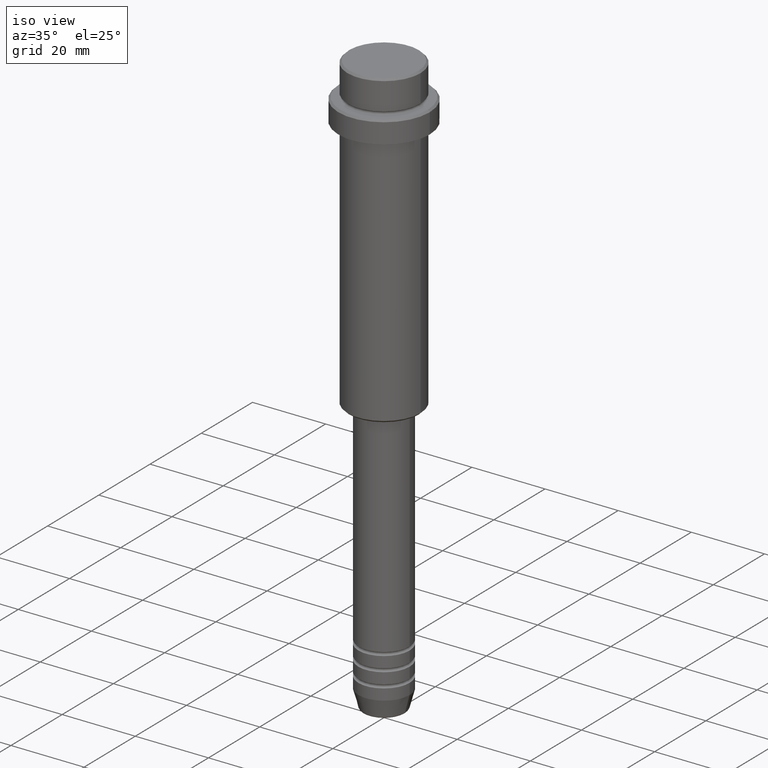
[diagram: clean part render]
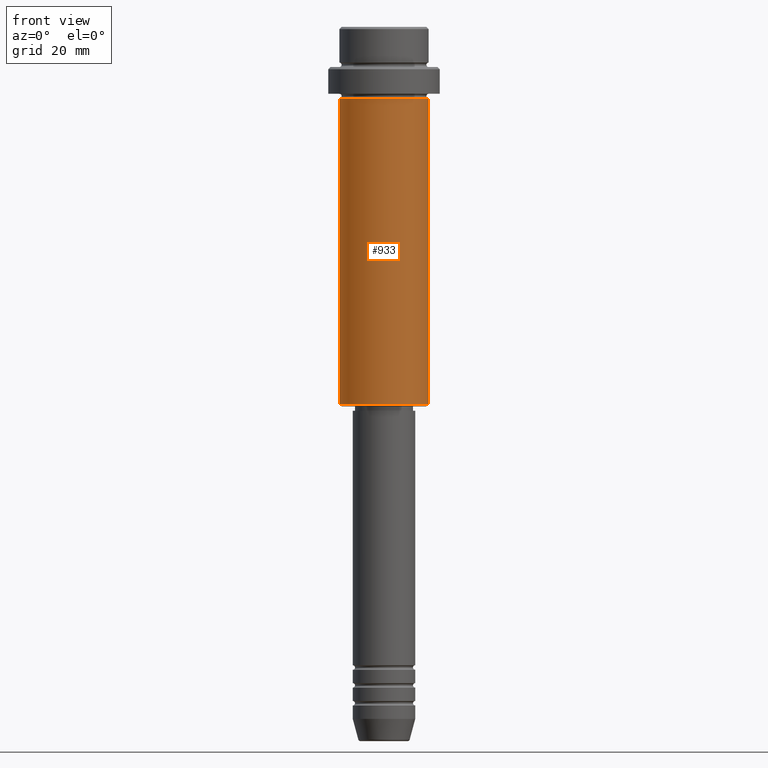
[diagram: tour spotlight — one face highlighted and labeled with its STEP entity id]
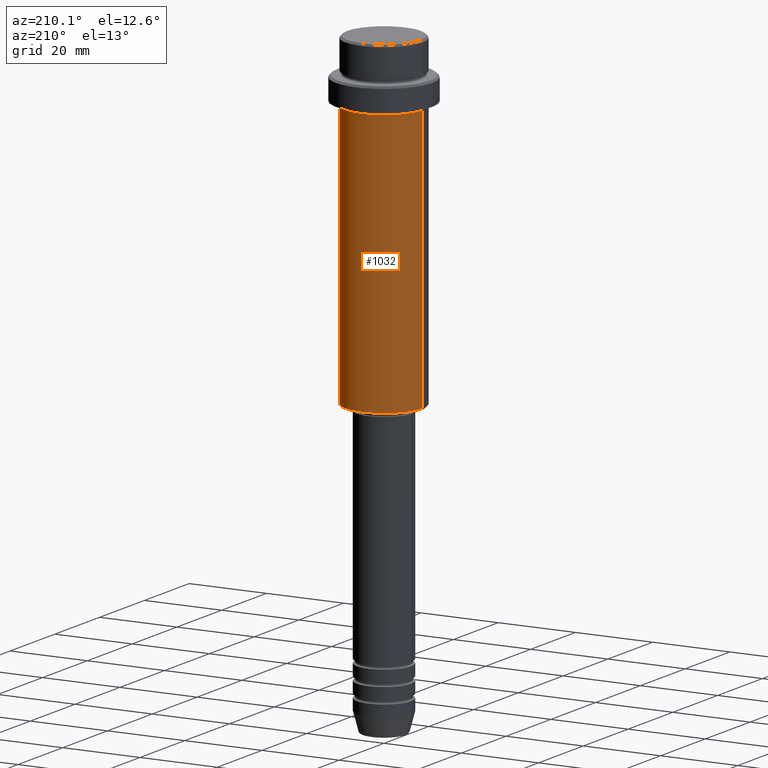
[diagram: tour spotlight — one face highlighted and labeled with its STEP entity id]
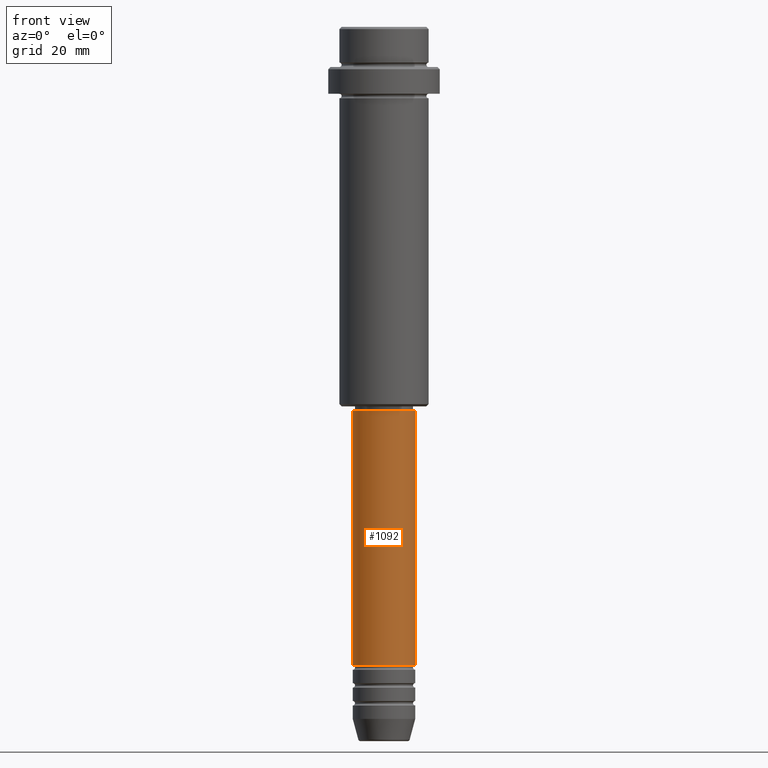
[diagram: tour spotlight — one face highlighted and labeled with its STEP entity id]
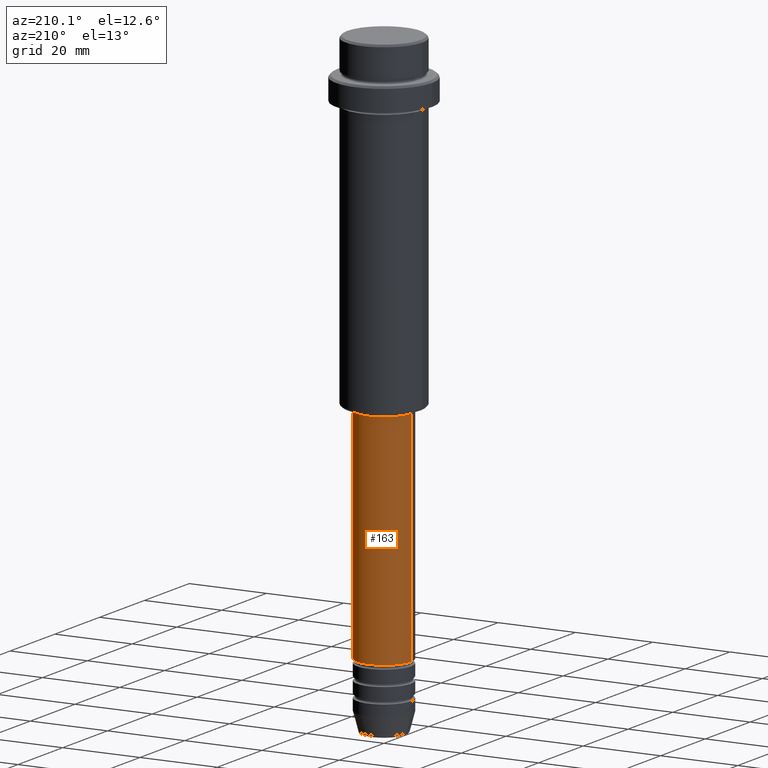
[diagram: tour spotlight — one face highlighted and labeled with its STEP entity id]
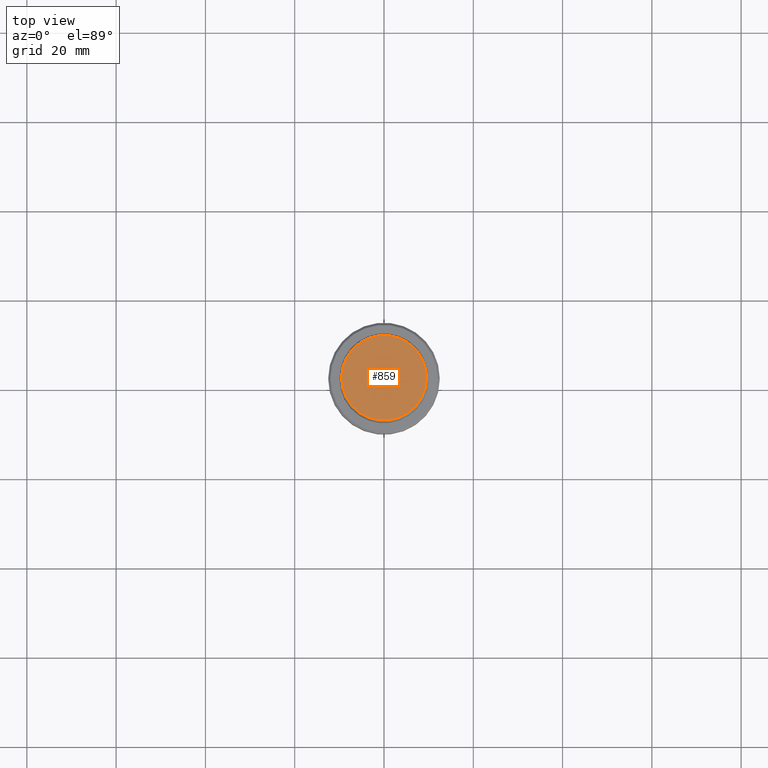
[diagram: tour spotlight — one face highlighted and labeled with its STEP entity id]
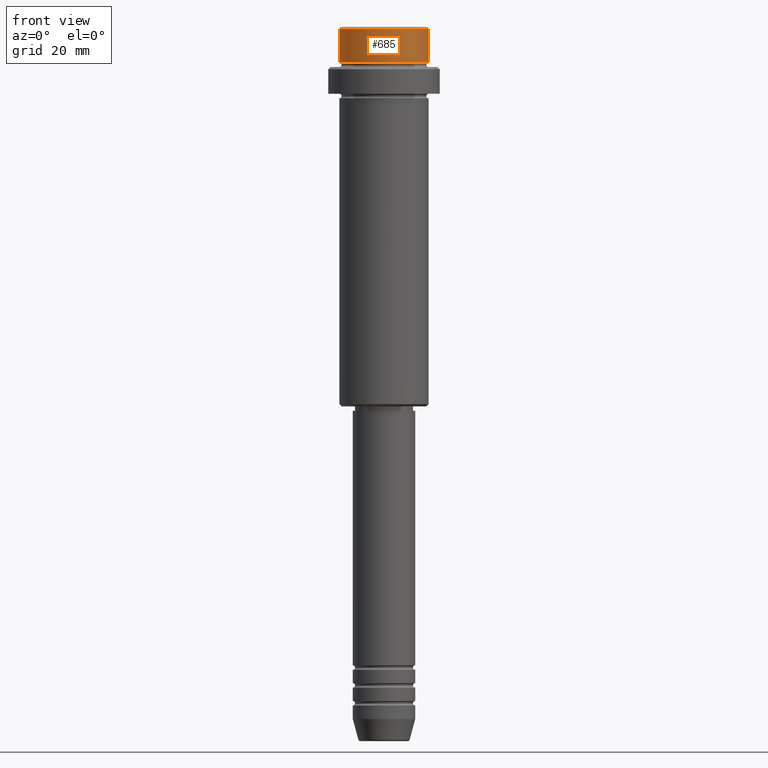
[diagram: tour spotlight — one face highlighted and labeled with its STEP entity id]
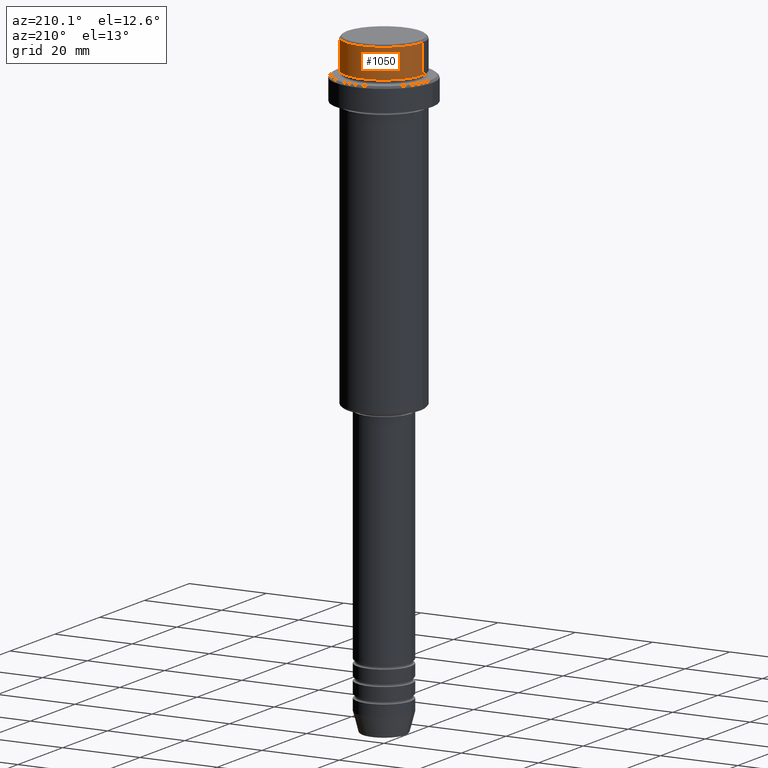
[diagram: tour spotlight — one face highlighted and labeled with its STEP entity id]
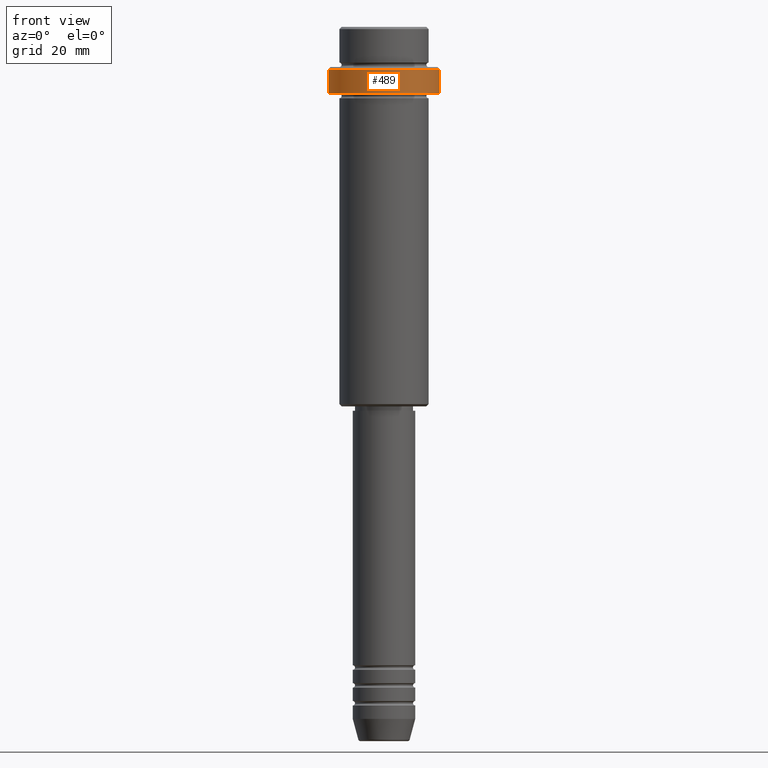
[diagram: tour spotlight — one face highlighted and labeled with its STEP entity id]
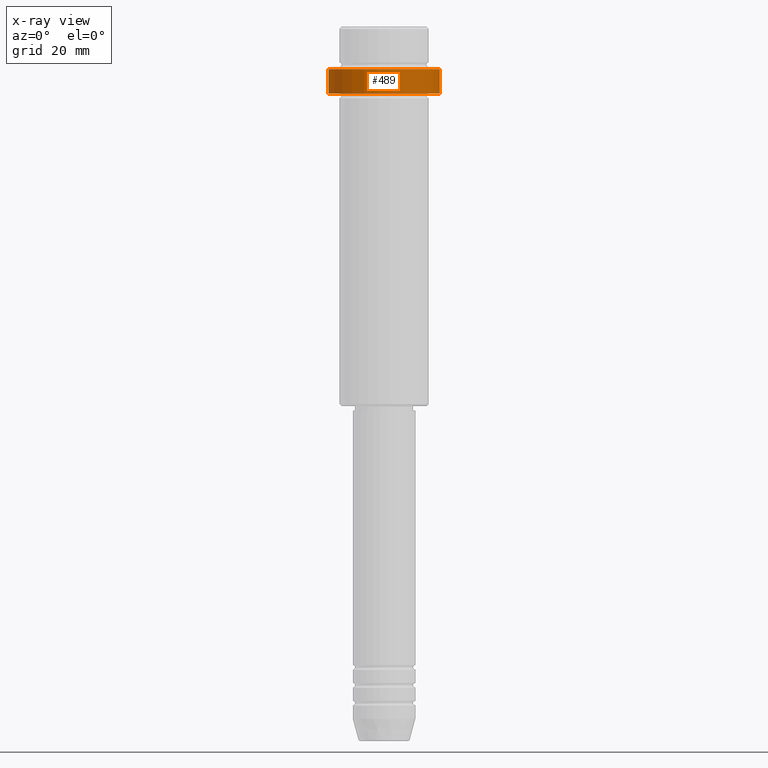
[diagram: x-ray of the same camera — body ghosted, this tour face saturated]
A machine part: a face-by-face anatomy tour. The part has 52 B-rep faces; the first image is the clean iso view, then the 8 largest visible faces are spotlighted one at a time (largest first), each with its STEP entity span.

Face 1 — front view, entity #933. In plain terms, the highlighted cylindrical surface (partial cylindrical patch) has radius 10 mm, axis along (-0, -0, 1).
Definition (entity closure, byte-faithful):
#7 = CARTESIAN_POINT ( 'NONE',  ( -10.00000000000000000, 1.224646799147353256E-15, -84.49999999999995737 ) ) ;
#12 = DIRECTION ( 'NONE',  ( -0.000000000000000000, -0.000000000000000000, 1.000000000000000000 ) ) ;
#26 = DIRECTION ( 'NONE',  ( 1.000000000000000000, 0.000000000000000000, 0.000000000000000000 ) ) ;
#54 = AXIS2_PLACEMENT_3D ( 'NONE', #377, #160, #1027 ) ;
#91 = CARTESIAN_POINT ( 'NONE',  ( 10.00000000000000000, 0.000000000000000000, 0.000000000000000000 ) ) ;
#100 = EDGE_CURVE ( 'NONE', #839, #482, #997, .T. ) ;
#145 = DIRECTION ( 'NONE',  ( -0.000000000000000000, -0.000000000000000000, 1.000000000000000000 ) ) ;
#160 = DIRECTION ( 'NONE',  ( -0.000000000000000000, -0.000000000000000000, 1.000000000000000000 ) ) ;
#207 = ORIENTED_EDGE ( 'NONE', *, *, #957, .F. ) ;
#271 = VERTEX_POINT ( 'NONE', #7 ) ;
#272 = FACE_OUTER_BOUND ( 'NONE', #652, .T. ) ;
#310 = CARTESIAN_POINT ( 'NONE',  ( -10.00000000000000000, 1.224646799147353256E-15, -16.00000000000000000 ) ) ;
#356 = CARTESIAN_POINT ( 'NONE',  ( -10.00000000000000000, 1.224646799147353256E-15, 0.000000000000000000 ) ) ;
#376 = LINE ( 'NONE', #356, #525 ) ;
#377 = CARTESIAN_POINT ( 'NONE',  ( 0.000000000000000000, 0.000000000000000000, -16.00000000000000000 ) ) ;
#392 = AXIS2_PLACEMENT_3D ( 'NONE', #910, #145, #26 ) ;
#453 = ORIENTED_EDGE ( 'NONE', *, *, #640, .T. ) ;
#482 = VERTEX_POINT ( 'NONE', #758 ) ;
#525 = VECTOR ( 'NONE', #1112, 1000.000000000000000 ) ;
#640 = EDGE_CURVE ( 'NONE', #1371, #482, #1097, .T. ) ;
#652 = EDGE_LOOP ( 'NONE', ( #207, #802, #453, #1107 ) ) ;
#750 = DIRECTION ( 'NONE',  ( -1.000000000000000000, 0.000000000000000000, 0.000000000000000000 ) ) ;
#758 = CARTESIAN_POINT ( 'NONE',  ( 10.00000000000000000, 0.000000000000000000, -16.00000000000000000 ) ) ;
#792 = AXIS2_PLACEMENT_3D ( 'NONE', #1298, #12, #750 ) ;
#793 = EDGE_CURVE ( 'NONE', #271, #1371, #1406, .T. ) ;
#802 = ORIENTED_EDGE ( 'NONE', *, *, #793, .T. ) ;
#839 = VERTEX_POINT ( 'NONE', #310 ) ;
#887 = VECTOR ( 'NONE', #1086, 1000.000000000000000 ) ;
#910 = CARTESIAN_POINT ( 'NONE',  ( 0.000000000000000000, 0.000000000000000000, 0.000000000000000000 ) ) ;
#933 = ADVANCED_FACE ( 'NONE', ( #272 ), #1232, .T. ) ;
#957 = EDGE_CURVE ( 'NONE', #271, #839, #376, .T. ) ;
#997 = CIRCLE ( 'NONE', #54, 10.00000000000000000 ) ;
#1027 = DIRECTION ( 'NONE',  ( 1.000000000000000000, 0.000000000000000000, 0.000000000000000000 ) ) ;
#1086 = DIRECTION ( 'NONE',  ( -0.000000000000000000, -0.000000000000000000, 1.000000000000000000 ) ) ;
#1097 = LINE ( 'NONE', #91, #887 ) ;
#1107 = ORIENTED_EDGE ( 'NONE', *, *, #100, .F. ) ;
#1112 = DIRECTION ( 'NONE',  ( -0.000000000000000000, -0.000000000000000000, 1.000000000000000000 ) ) ;
#1224 = CARTESIAN_POINT ( 'NONE',  ( 10.00000000000000000, 0.000000000000000000, -84.49999999999995737 ) ) ;
#1232 = CYLINDRICAL_SURFACE ( 'NONE', #392, 10.00000000000000000 ) ;
#1298 = CARTESIAN_POINT ( 'NONE',  ( 0.000000000000000000, 0.000000000000000000, -84.49999999999995737 ) ) ;
#1371 = VERTEX_POINT ( 'NONE', #1224 ) ;
#1406 = CIRCLE ( 'NONE', #792, 10.00000000000000000 ) ;

Face 2 — auxiliary view, entity #1032. In plain terms, the highlighted cylindrical surface (partial cylindrical patch) has radius 10 mm, axis along (-0, -0, 1).
Definition (entity closure, byte-faithful):
#7 = CARTESIAN_POINT ( 'NONE',  ( -10.00000000000000000, 1.224646799147353256E-15, -84.49999999999995737 ) ) ;
#70 = CYLINDRICAL_SURFACE ( 'NONE', #370, 10.00000000000000000 ) ;
#91 = CARTESIAN_POINT ( 'NONE',  ( 10.00000000000000000, 0.000000000000000000, 0.000000000000000000 ) ) ;
#97 = CARTESIAN_POINT ( 'NONE',  ( 0.000000000000000000, 0.000000000000000000, 0.000000000000000000 ) ) ;
#212 = EDGE_CURVE ( 'NONE', #482, #839, #1153, .T. ) ;
#270 = DIRECTION ( 'NONE',  ( -0.000000000000000000, -0.000000000000000000, 1.000000000000000000 ) ) ;
#271 = VERTEX_POINT ( 'NONE', #7 ) ;
#310 = CARTESIAN_POINT ( 'NONE',  ( -10.00000000000000000, 1.224646799147353256E-15, -16.00000000000000000 ) ) ;
#324 = ORIENTED_EDGE ( 'NONE', *, *, #479, .T. ) ;
#340 = AXIS2_PLACEMENT_3D ( 'NONE', #1261, #1108, #1102 ) ;
#356 = CARTESIAN_POINT ( 'NONE',  ( -10.00000000000000000, 1.224646799147353256E-15, 0.000000000000000000 ) ) ;
#370 = AXIS2_PLACEMENT_3D ( 'NONE', #97, #647, #730 ) ;
#376 = LINE ( 'NONE', #356, #525 ) ;
#473 = CARTESIAN_POINT ( 'NONE',  ( 0.000000000000000000, 0.000000000000000000, -16.00000000000000000 ) ) ;
#479 = EDGE_CURVE ( 'NONE', #1371, #271, #721, .T. ) ;
#482 = VERTEX_POINT ( 'NONE', #758 ) ;
#518 = EDGE_LOOP ( 'NONE', ( #324, #1242, #1064, #949 ) ) ;
#525 = VECTOR ( 'NONE', #1112, 1000.000000000000000 ) ;
#640 = EDGE_CURVE ( 'NONE', #1371, #482, #1097, .T. ) ;
#647 = DIRECTION ( 'NONE',  ( -0.000000000000000000, -0.000000000000000000, 1.000000000000000000 ) ) ;
#659 = AXIS2_PLACEMENT_3D ( 'NONE', #473, #270, #806 ) ;
#721 = CIRCLE ( 'NONE', #340, 10.00000000000000000 ) ;
#730 = DIRECTION ( 'NONE',  ( 1.000000000000000000, 0.000000000000000000, 0.000000000000000000 ) ) ;
#758 = CARTESIAN_POINT ( 'NONE',  ( 10.00000000000000000, 0.000000000000000000, -16.00000000000000000 ) ) ;
#806 = DIRECTION ( 'NONE',  ( 1.000000000000000000, 0.000000000000000000, 0.000000000000000000 ) ) ;
#839 = VERTEX_POINT ( 'NONE', #310 ) ;
#887 = VECTOR ( 'NONE', #1086, 1000.000000000000000 ) ;
#949 = ORIENTED_EDGE ( 'NONE', *, *, #640, .F. ) ;
#957 = EDGE_CURVE ( 'NONE', #271, #839, #376, .T. ) ;
#968 = FACE_OUTER_BOUND ( 'NONE', #518, .T. ) ;
#1032 = ADVANCED_FACE ( 'NONE', ( #968 ), #70, .T. ) ;
#1064 = ORIENTED_EDGE ( 'NONE', *, *, #212, .F. ) ;
#1086 = DIRECTION ( 'NONE',  ( -0.000000000000000000, -0.000000000000000000, 1.000000000000000000 ) ) ;
#1097 = LINE ( 'NONE', #91, #887 ) ;
#1102 = DIRECTION ( 'NONE',  ( -1.000000000000000000, 0.000000000000000000, 0.000000000000000000 ) ) ;
#1108 = DIRECTION ( 'NONE',  ( -0.000000000000000000, -0.000000000000000000, 1.000000000000000000 ) ) ;
#1112 = DIRECTION ( 'NONE',  ( -0.000000000000000000, -0.000000000000000000, 1.000000000000000000 ) ) ;
#1153 = CIRCLE ( 'NONE', #659, 10.00000000000000000 ) ;
#1224 = CARTESIAN_POINT ( 'NONE',  ( 10.00000000000000000, 0.000000000000000000, -84.49999999999995737 ) ) ;
#1242 = ORIENTED_EDGE ( 'NONE', *, *, #957, .T. ) ;
#1261 = CARTESIAN_POINT ( 'NONE',  ( 0.000000000000000000, 0.000000000000000000, -84.49999999999995737 ) ) ;
#1371 = VERTEX_POINT ( 'NONE', #1224 ) ;

Face 3 — front view, entity #1092. In plain terms, the highlighted cylindrical surface (edge-blend (fillet) strip) has radius 7 mm, axis along (-0, -0, 1).
Definition (entity closure, byte-faithful):
#21 = AXIS2_PLACEMENT_3D ( 'NONE', #619, #516, #724 ) ;
#62 = AXIS2_PLACEMENT_3D ( 'NONE', #805, #900, #1249 ) ;
#92 = EDGE_CURVE ( 'NONE', #1055, #586, #1241, .T. ) ;
#107 = VECTOR ( 'NONE', #706, 1000.000000000000000 ) ;
#150 = CARTESIAN_POINT ( 'NONE',  ( -7.000000000000000000, 8.572527594031473190E-16, -85.99999999999997158 ) ) ;
#226 = ORIENTED_EDGE ( 'NONE', *, *, #1315, .F. ) ;
#229 = ORIENTED_EDGE ( 'NONE', *, *, #1120, .T. ) ;
#384 = VERTEX_POINT ( 'NONE', #539 ) ;
#435 = CIRCLE ( 'NONE', #812, 7.000000000000000000 ) ;
#440 = ORIENTED_EDGE ( 'NONE', *, *, #1377, .T. ) ;
#486 = VECTOR ( 'NONE', #1023, 1000.000000000000000 ) ;
#488 = LINE ( 'NONE', #1028, #486 ) ;
#509 = VERTEX_POINT ( 'NONE', #1186 ) ;
#516 = DIRECTION ( 'NONE',  ( -0.000000000000000000, -0.000000000000000000, 1.000000000000000000 ) ) ;
#536 = EDGE_LOOP ( 'NONE', ( #1347, #229, #440, #226 ) ) ;
#539 = CARTESIAN_POINT ( 'NONE',  ( 7.000000000000000000, 0.000000000000000000, -142.9999999999998579 ) ) ;
#586 = VERTEX_POINT ( 'NONE', #150 ) ;
#619 = CARTESIAN_POINT ( 'NONE',  ( 0.000000000000000000, 0.000000000000000000, 0.000000000000000000 ) ) ;
#689 = CIRCLE ( 'NONE', #62, 7.000000000000000000 ) ;
#706 = DIRECTION ( 'NONE',  ( -0.000000000000000000, -0.000000000000000000, 1.000000000000000000 ) ) ;
#724 = DIRECTION ( 'NONE',  ( 1.000000000000000000, 0.000000000000000000, 0.000000000000000000 ) ) ;
#805 = CARTESIAN_POINT ( 'NONE',  ( 0.000000000000000000, 0.000000000000000000, -85.99999999999997158 ) ) ;
#812 = AXIS2_PLACEMENT_3D ( 'NONE', #1161, #843, #1275 ) ;
#838 = CARTESIAN_POINT ( 'NONE',  ( -7.000000000000000000, 8.572527594031473190E-16, -142.9999999999998579 ) ) ;
#843 = DIRECTION ( 'NONE',  ( -0.000000000000000000, -0.000000000000000000, 1.000000000000000000 ) ) ;
#900 = DIRECTION ( 'NONE',  ( -0.000000000000000000, -0.000000000000000000, 1.000000000000000000 ) ) ;
#1023 = DIRECTION ( 'NONE',  ( -0.000000000000000000, -0.000000000000000000, 1.000000000000000000 ) ) ;
#1028 = CARTESIAN_POINT ( 'NONE',  ( 7.000000000000000000, 0.000000000000000000, 0.000000000000000000 ) ) ;
#1049 = CYLINDRICAL_SURFACE ( 'NONE', #21, 7.000000000000000000 ) ;
#1055 = VERTEX_POINT ( 'NONE', #838 ) ;
#1092 = ADVANCED_FACE ( 'NONE', ( #1375 ), #1049, .T. ) ;
#1120 = EDGE_CURVE ( 'NONE', #1055, #384, #435, .T. ) ;
#1161 = CARTESIAN_POINT ( 'NONE',  ( 0.000000000000000000, 0.000000000000000000, -142.9999999999998579 ) ) ;
#1186 = CARTESIAN_POINT ( 'NONE',  ( 7.000000000000000000, 0.000000000000000000, -85.99999999999997158 ) ) ;
#1241 = LINE ( 'NONE', #1349, #107 ) ;
#1249 = DIRECTION ( 'NONE',  ( 1.000000000000000000, 0.000000000000000000, 0.000000000000000000 ) ) ;
#1275 = DIRECTION ( 'NONE',  ( 1.000000000000000000, 0.000000000000000000, 0.000000000000000000 ) ) ;
#1315 = EDGE_CURVE ( 'NONE', #586, #509, #689, .T. ) ;
#1347 = ORIENTED_EDGE ( 'NONE', *, *, #92, .F. ) ;
#1349 = CARTESIAN_POINT ( 'NONE',  ( -7.000000000000000000, 8.572527594031473190E-16, 0.000000000000000000 ) ) ;
#1375 = FACE_OUTER_BOUND ( 'NONE', #536, .T. ) ;
#1377 = EDGE_CURVE ( 'NONE', #384, #509, #488, .T. ) ;

Face 4 — auxiliary view, entity #163. In plain terms, the highlighted cylindrical surface (edge-blend (fillet) strip) has radius 7 mm, axis along (-0, -0, 1).
Definition (entity closure, byte-faithful):
#3 = DIRECTION ( 'NONE',  ( 1.000000000000000000, 0.000000000000000000, 0.000000000000000000 ) ) ;
#75 = AXIS2_PLACEMENT_3D ( 'NONE', #667, #551, #3 ) ;
#92 = EDGE_CURVE ( 'NONE', #1055, #586, #1241, .T. ) ;
#107 = VECTOR ( 'NONE', #706, 1000.000000000000000 ) ;
#114 = ORIENTED_EDGE ( 'NONE', *, *, #92, .T. ) ;
#150 = CARTESIAN_POINT ( 'NONE',  ( -7.000000000000000000, 8.572527594031473190E-16, -85.99999999999997158 ) ) ;
#161 = ORIENTED_EDGE ( 'NONE', *, *, #1377, .F. ) ;
#163 = ADVANCED_FACE ( 'NONE', ( #239 ), #873, .T. ) ;
#215 = DIRECTION ( 'NONE',  ( -0.000000000000000000, -0.000000000000000000, 1.000000000000000000 ) ) ;
#239 = FACE_OUTER_BOUND ( 'NONE', #1211, .T. ) ;
#291 = AXIS2_PLACEMENT_3D ( 'NONE', #328, #215, #654 ) ;
#328 = CARTESIAN_POINT ( 'NONE',  ( 0.000000000000000000, 0.000000000000000000, -85.99999999999997158 ) ) ;
#334 = DIRECTION ( 'NONE',  ( -0.000000000000000000, -0.000000000000000000, 1.000000000000000000 ) ) ;
#384 = VERTEX_POINT ( 'NONE', #539 ) ;
#403 = EDGE_CURVE ( 'NONE', #384, #1055, #767, .T. ) ;
#486 = VECTOR ( 'NONE', #1023, 1000.000000000000000 ) ;
#488 = LINE ( 'NONE', #1028, #486 ) ;
#490 = DIRECTION ( 'NONE',  ( 1.000000000000000000, 0.000000000000000000, 0.000000000000000000 ) ) ;
#509 = VERTEX_POINT ( 'NONE', #1186 ) ;
#539 = CARTESIAN_POINT ( 'NONE',  ( 7.000000000000000000, 0.000000000000000000, -142.9999999999998579 ) ) ;
#544 = CIRCLE ( 'NONE', #291, 7.000000000000000000 ) ;
#551 = DIRECTION ( 'NONE',  ( -0.000000000000000000, -0.000000000000000000, 1.000000000000000000 ) ) ;
#586 = VERTEX_POINT ( 'NONE', #150 ) ;
#595 = ORIENTED_EDGE ( 'NONE', *, *, #636, .F. ) ;
#636 = EDGE_CURVE ( 'NONE', #509, #586, #544, .T. ) ;
#654 = DIRECTION ( 'NONE',  ( 1.000000000000000000, 0.000000000000000000, 0.000000000000000000 ) ) ;
#667 = CARTESIAN_POINT ( 'NONE',  ( 0.000000000000000000, 0.000000000000000000, 0.000000000000000000 ) ) ;
#706 = DIRECTION ( 'NONE',  ( -0.000000000000000000, -0.000000000000000000, 1.000000000000000000 ) ) ;
#767 = CIRCLE ( 'NONE', #1016, 7.000000000000000000 ) ;
#838 = CARTESIAN_POINT ( 'NONE',  ( -7.000000000000000000, 8.572527594031473190E-16, -142.9999999999998579 ) ) ;
#871 = CARTESIAN_POINT ( 'NONE',  ( 0.000000000000000000, 0.000000000000000000, -142.9999999999998579 ) ) ;
#873 = CYLINDRICAL_SURFACE ( 'NONE', #75, 7.000000000000000000 ) ;
#1016 = AXIS2_PLACEMENT_3D ( 'NONE', #871, #334, #490 ) ;
#1023 = DIRECTION ( 'NONE',  ( -0.000000000000000000, -0.000000000000000000, 1.000000000000000000 ) ) ;
#1028 = CARTESIAN_POINT ( 'NONE',  ( 7.000000000000000000, 0.000000000000000000, 0.000000000000000000 ) ) ;
#1055 = VERTEX_POINT ( 'NONE', #838 ) ;
#1186 = CARTESIAN_POINT ( 'NONE',  ( 7.000000000000000000, 0.000000000000000000, -85.99999999999997158 ) ) ;
#1211 = EDGE_LOOP ( 'NONE', ( #1398, #114, #595, #161 ) ) ;
#1241 = LINE ( 'NONE', #1349, #107 ) ;
#1349 = CARTESIAN_POINT ( 'NONE',  ( -7.000000000000000000, 8.572527594031473190E-16, 0.000000000000000000 ) ) ;
#1377 = EDGE_CURVE ( 'NONE', #384, #509, #488, .T. ) ;
#1398 = ORIENTED_EDGE ( 'NONE', *, *, #403, .T. ) ;

Face 5 — top view, entity #859. In plain terms, the highlighted planar face has unit normal (0, -0, 1).
Definition (entity closure, byte-faithful):
#25 = EDGE_CURVE ( 'NONE', #1066, #71, #386, .T. ) ;
#71 = VERTEX_POINT ( 'NONE', #1345 ) ;
#143 = CARTESIAN_POINT ( 'NONE',  ( 0.000000000000000000, 0.000000000000000000, 0.000000000000000000 ) ) ;
#206 = CARTESIAN_POINT ( 'NONE',  ( 0.000000000000000000, 0.000000000000000000, 0.000000000000000000 ) ) ;
#338 = DIRECTION ( 'NONE',  ( -0.000000000000000000, -0.000000000000000000, 1.000000000000000000 ) ) ;
#386 = CIRCLE ( 'NONE', #700, 9.500000000000023093 ) ;
#395 = EDGE_LOOP ( 'NONE', ( #895, #1405 ) ) ;
#448 = EDGE_CURVE ( 'NONE', #71, #1066, #1244, .T. ) ;
#642 = DIRECTION ( 'NONE',  ( 0.000000000000000000, -0.000000000000000000, 1.000000000000000000 ) ) ;
#700 = AXIS2_PLACEMENT_3D ( 'NONE', #893, #338, #769 ) ;
#769 = DIRECTION ( 'NONE',  ( 1.000000000000000000, 0.000000000000000000, 0.000000000000000000 ) ) ;
#859 = ADVANCED_FACE ( 'NONE', ( #958 ), #1176, .T. ) ;
#893 = CARTESIAN_POINT ( 'NONE',  ( 0.000000000000000000, 0.000000000000000000, 0.000000000000000000 ) ) ;
#895 = ORIENTED_EDGE ( 'NONE', *, *, #448, .T. ) ;
#916 = DIRECTION ( 'NONE',  ( -0.000000000000000000, -0.000000000000000000, 1.000000000000000000 ) ) ;
#958 = FACE_OUTER_BOUND ( 'NONE', #395, .T. ) ;
#972 = AXIS2_PLACEMENT_3D ( 'NONE', #143, #916, #1011 ) ;
#1011 = DIRECTION ( 'NONE',  ( 1.000000000000000000, 0.000000000000000000, 0.000000000000000000 ) ) ;
#1066 = VERTEX_POINT ( 'NONE', #1156 ) ;
#1072 = DIRECTION ( 'NONE',  ( 1.000000000000000000, 0.000000000000000000, 0.000000000000000000 ) ) ;
#1156 = CARTESIAN_POINT ( 'NONE',  ( 9.500000000000023093, 1.194030629168670653E-15, 0.000000000000000000 ) ) ;
#1176 = PLANE ( 'NONE',  #1203 ) ;
#1203 = AXIS2_PLACEMENT_3D ( 'NONE', #206, #642, #1072 ) ;
#1244 = CIRCLE ( 'NONE', #972, 9.500000000000023093 ) ;
#1345 = CARTESIAN_POINT ( 'NONE',  ( -9.500000000000023093, 0.000000000000000000, 0.000000000000000000 ) ) ;
#1405 = ORIENTED_EDGE ( 'NONE', *, *, #25, .T. ) ;

Face 6 — front view, entity #685. In plain terms, the highlighted cylindrical surface (partial cylindrical patch) has radius 10 mm, axis along (-0, -0, 1).
Definition (entity closure, byte-faithful):
#6 = CARTESIAN_POINT ( 'NONE',  ( -9.999999999999998224, 1.224646799147353059E-15, 0.000000000000000000 ) ) ;
#10 = FACE_OUTER_BOUND ( 'NONE', #580, .T. ) ;
#58 = CARTESIAN_POINT ( 'NONE',  ( 0.000000000000000000, 0.000000000000000000, -7.999999999999998224 ) ) ;
#219 = DIRECTION ( 'NONE',  ( -0.000000000000000000, -0.000000000000000000, 1.000000000000000000 ) ) ;
#256 = DIRECTION ( 'NONE',  ( 1.000000000000000000, 0.000000000000000000, 0.000000000000000000 ) ) ;
#296 = ORIENTED_EDGE ( 'NONE', *, *, #510, .T. ) ;
#317 = AXIS2_PLACEMENT_3D ( 'NONE', #780, #1329, #256 ) ;
#327 = DIRECTION ( 'NONE',  ( -0.000000000000000000, -0.000000000000000000, 1.000000000000000000 ) ) ;
#341 = ORIENTED_EDGE ( 'NONE', *, *, #477, .T. ) ;
#342 = CIRCLE ( 'NONE', #951, 9.999999999999998224 ) ;
#430 = VECTOR ( 'NONE', #219, 1000.000000000000000 ) ;
#471 = CYLINDRICAL_SURFACE ( 'NONE', #317, 9.999999999999998224 ) ;
#474 = CARTESIAN_POINT ( 'NONE',  ( 9.999999999999998224, 0.000000000000000000, -0.4999999999999970024 ) ) ;
#477 = EDGE_CURVE ( 'NONE', #1180, #1273, #542, .T. ) ;
#510 = EDGE_CURVE ( 'NONE', #1273, #979, #1412, .T. ) ;
#535 = CARTESIAN_POINT ( 'NONE',  ( 9.999999999999998224, 0.000000000000000000, 0.000000000000000000 ) ) ;
#542 = CIRCLE ( 'NONE', #950, 9.999999999999998224 ) ;
#564 = DIRECTION ( 'NONE',  ( 0.000000000000000000, 0.000000000000000000, -1.000000000000000000 ) ) ;
#580 = EDGE_LOOP ( 'NONE', ( #849, #341, #296, #596 ) ) ;
#596 = ORIENTED_EDGE ( 'NONE', *, *, #892, .T. ) ;
#685 = ADVANCED_FACE ( 'NONE', ( #10 ), #471, .T. ) ;
#759 = VERTEX_POINT ( 'NONE', #964 ) ;
#760 = CARTESIAN_POINT ( 'NONE',  ( 9.999999999999998224, 0.000000000000000000, -7.999999999999998224 ) ) ;
#780 = CARTESIAN_POINT ( 'NONE',  ( 0.000000000000000000, 0.000000000000000000, 0.000000000000000000 ) ) ;
#796 = DIRECTION ( 'NONE',  ( 1.000000000000000000, 0.000000000000000000, 0.000000000000000000 ) ) ;
#825 = DIRECTION ( 'NONE',  ( 1.000000000000000000, 0.000000000000000000, 0.000000000000000000 ) ) ;
#849 = ORIENTED_EDGE ( 'NONE', *, *, #1148, .F. ) ;
#892 = EDGE_CURVE ( 'NONE', #979, #759, #342, .T. ) ;
#950 = AXIS2_PLACEMENT_3D ( 'NONE', #58, #1044, #825 ) ;
#951 = AXIS2_PLACEMENT_3D ( 'NONE', #1003, #564, #796 ) ;
#964 = CARTESIAN_POINT ( 'NONE',  ( -9.999999999999998224, 1.224646799147353059E-15, -0.4999999999999970024 ) ) ;
#979 = VERTEX_POINT ( 'NONE', #474 ) ;
#993 = CARTESIAN_POINT ( 'NONE',  ( -9.999999999999998224, 1.224646799147353059E-15, -7.999999999999998224 ) ) ;
#1003 = CARTESIAN_POINT ( 'NONE',  ( 0.000000000000000000, 0.000000000000000000, -0.4999999999999970024 ) ) ;
#1044 = DIRECTION ( 'NONE',  ( -0.000000000000000000, -0.000000000000000000, 1.000000000000000000 ) ) ;
#1139 = VECTOR ( 'NONE', #327, 1000.000000000000000 ) ;
#1148 = EDGE_CURVE ( 'NONE', #1180, #759, #1295, .T. ) ;
#1180 = VERTEX_POINT ( 'NONE', #993 ) ;
#1273 = VERTEX_POINT ( 'NONE', #760 ) ;
#1295 = LINE ( 'NONE', #6, #1139 ) ;
#1329 = DIRECTION ( 'NONE',  ( -0.000000000000000000, -0.000000000000000000, 1.000000000000000000 ) ) ;
#1412 = LINE ( 'NONE', #535, #430 ) ;

Face 7 — auxiliary view, entity #1050. In plain terms, the highlighted cylindrical surface (partial cylindrical patch) has radius 10 mm, axis along (-0, -0, 1).
Definition (entity closure, byte-faithful):
#6 = CARTESIAN_POINT ( 'NONE',  ( -9.999999999999998224, 1.224646799147353059E-15, 0.000000000000000000 ) ) ;
#73 = ORIENTED_EDGE ( 'NONE', *, *, #1148, .T. ) ;
#195 = ORIENTED_EDGE ( 'NONE', *, *, #255, .T. ) ;
#219 = DIRECTION ( 'NONE',  ( -0.000000000000000000, -0.000000000000000000, 1.000000000000000000 ) ) ;
#255 = EDGE_CURVE ( 'NONE', #1273, #1180, #998, .T. ) ;
#280 = AXIS2_PLACEMENT_3D ( 'NONE', #962, #404, #1257 ) ;
#316 = ORIENTED_EDGE ( 'NONE', *, *, #510, .F. ) ;
#327 = DIRECTION ( 'NONE',  ( -0.000000000000000000, -0.000000000000000000, 1.000000000000000000 ) ) ;
#347 = ORIENTED_EDGE ( 'NONE', *, *, #390, .T. ) ;
#366 = AXIS2_PLACEMENT_3D ( 'NONE', #851, #1069, #754 ) ;
#390 = EDGE_CURVE ( 'NONE', #759, #979, #480, .T. ) ;
#404 = DIRECTION ( 'NONE',  ( -0.000000000000000000, -0.000000000000000000, 1.000000000000000000 ) ) ;
#430 = VECTOR ( 'NONE', #219, 1000.000000000000000 ) ;
#437 = DIRECTION ( 'NONE',  ( 1.000000000000000000, 0.000000000000000000, 0.000000000000000000 ) ) ;
#474 = CARTESIAN_POINT ( 'NONE',  ( 9.999999999999998224, 0.000000000000000000, -0.4999999999999970024 ) ) ;
#480 = CIRCLE ( 'NONE', #1202, 9.999999999999998224 ) ;
#510 = EDGE_CURVE ( 'NONE', #1273, #979, #1412, .T. ) ;
#512 = CYLINDRICAL_SURFACE ( 'NONE', #280, 9.999999999999998224 ) ;
#535 = CARTESIAN_POINT ( 'NONE',  ( 9.999999999999998224, 0.000000000000000000, 0.000000000000000000 ) ) ;
#549 = CARTESIAN_POINT ( 'NONE',  ( 0.000000000000000000, 0.000000000000000000, -0.4999999999999970024 ) ) ;
#754 = DIRECTION ( 'NONE',  ( 1.000000000000000000, 0.000000000000000000, 0.000000000000000000 ) ) ;
#759 = VERTEX_POINT ( 'NONE', #964 ) ;
#760 = CARTESIAN_POINT ( 'NONE',  ( 9.999999999999998224, 0.000000000000000000, -7.999999999999998224 ) ) ;
#834 = EDGE_LOOP ( 'NONE', ( #195, #73, #347, #316 ) ) ;
#851 = CARTESIAN_POINT ( 'NONE',  ( 0.000000000000000000, 0.000000000000000000, -7.999999999999998224 ) ) ;
#962 = CARTESIAN_POINT ( 'NONE',  ( 0.000000000000000000, 0.000000000000000000, 0.000000000000000000 ) ) ;
#964 = CARTESIAN_POINT ( 'NONE',  ( -9.999999999999998224, 1.224646799147353059E-15, -0.4999999999999970024 ) ) ;
#979 = VERTEX_POINT ( 'NONE', #474 ) ;
#993 = CARTESIAN_POINT ( 'NONE',  ( -9.999999999999998224, 1.224646799147353059E-15, -7.999999999999998224 ) ) ;
#998 = CIRCLE ( 'NONE', #366, 9.999999999999998224 ) ;
#1050 = ADVANCED_FACE ( 'NONE', ( #1077 ), #512, .T. ) ;
#1069 = DIRECTION ( 'NONE',  ( -0.000000000000000000, -0.000000000000000000, 1.000000000000000000 ) ) ;
#1077 = FACE_OUTER_BOUND ( 'NONE', #834, .T. ) ;
#1139 = VECTOR ( 'NONE', #327, 1000.000000000000000 ) ;
#1148 = EDGE_CURVE ( 'NONE', #1180, #759, #1295, .T. ) ;
#1180 = VERTEX_POINT ( 'NONE', #993 ) ;
#1202 = AXIS2_PLACEMENT_3D ( 'NONE', #549, #1407, #437 ) ;
#1257 = DIRECTION ( 'NONE',  ( 1.000000000000000000, 0.000000000000000000, 0.000000000000000000 ) ) ;
#1273 = VERTEX_POINT ( 'NONE', #760 ) ;
#1295 = LINE ( 'NONE', #6, #1139 ) ;
#1407 = DIRECTION ( 'NONE',  ( 0.000000000000000000, 0.000000000000000000, -1.000000000000000000 ) ) ;
#1412 = LINE ( 'NONE', #535, #430 ) ;

Face 8 — front view, entity #489. An x-ray twin of the same camera follows (body ghosted, this face saturated) — the face is partly hidden behind the body. In plain terms, the highlighted cylindrical surface (partial cylindrical patch) has radius 12.5 mm, axis along (-0, -0, 1).
Definition (entity closure, byte-faithful):
#2 = DIRECTION ( 'NONE',  ( 1.000000000000000000, 0.000000000000000000, 0.000000000000000000 ) ) ;
#13 = ORIENTED_EDGE ( 'NONE', *, *, #814, .T. ) ;
#27 = DIRECTION ( 'NONE',  ( -0.000000000000000000, -0.000000000000000000, 1.000000000000000000 ) ) ;
#85 = DIRECTION ( 'NONE',  ( 1.000000000000000000, 0.000000000000000000, 0.000000000000000000 ) ) ;
#90 = ORIENTED_EDGE ( 'NONE', *, *, #116, .T. ) ;
#101 = CARTESIAN_POINT ( 'NONE',  ( 0.000000000000000000, 0.000000000000000000, -15.00000000000000178 ) ) ;
#112 = DIRECTION ( 'NONE',  ( -0.000000000000000000, -0.000000000000000000, 1.000000000000000000 ) ) ;
#115 = DIRECTION ( 'NONE',  ( -0.000000000000000000, -0.000000000000000000, 1.000000000000000000 ) ) ;
#116 = EDGE_CURVE ( 'NONE', #1373, #608, #936, .T. ) ;
#155 = CARTESIAN_POINT ( 'NONE',  ( 12.50000000000000000, 0.000000000000000000, -15.00000000000000178 ) ) ;
#158 = VERTEX_POINT ( 'NONE', #907 ) ;
#277 = AXIS2_PLACEMENT_3D ( 'NONE', #966, #115, #1075 ) ;
#378 = ORIENTED_EDGE ( 'NONE', *, *, #783, .T. ) ;
#458 = CIRCLE ( 'NONE', #633, 12.50000000000000000 ) ;
#489 = ADVANCED_FACE ( 'NONE', ( #565 ), #559, .T. ) ;
#559 = CYLINDRICAL_SURFACE ( 'NONE', #277, 12.50000000000000000 ) ;
#565 = FACE_OUTER_BOUND ( 'NONE', #1317, .T. ) ;
#583 = CARTESIAN_POINT ( 'NONE',  ( -12.50000000000000000, 1.530808498934191521E-15, -15.00000000000000178 ) ) ;
#608 = VERTEX_POINT ( 'NONE', #1136 ) ;
#628 = DIRECTION ( 'NONE',  ( 0.000000000000000000, 0.000000000000000000, -1.000000000000000000 ) ) ;
#633 = AXIS2_PLACEMENT_3D ( 'NONE', #651, #628, #85 ) ;
#651 = CARTESIAN_POINT ( 'NONE',  ( 0.000000000000000000, 0.000000000000000000, -9.499999999999978684 ) ) ;
#783 = EDGE_CURVE ( 'NONE', #608, #158, #458, .T. ) ;
#784 = CARTESIAN_POINT ( 'NONE',  ( -12.50000000000000000, 1.530808498934191521E-15, 0.000000000000000000 ) ) ;
#814 = EDGE_CURVE ( 'NONE', #1414, #1373, #906, .T. ) ;
#819 = DIRECTION ( 'NONE',  ( -0.000000000000000000, -0.000000000000000000, 1.000000000000000000 ) ) ;
#906 = CIRCLE ( 'NONE', #1264, 12.50000000000000000 ) ;
#907 = CARTESIAN_POINT ( 'NONE',  ( -12.50000000000000000, 1.530808498934191521E-15, -9.499999999999978684 ) ) ;
#936 = LINE ( 'NONE', #1364, #1058 ) ;
#966 = CARTESIAN_POINT ( 'NONE',  ( 0.000000000000000000, 0.000000000000000000, 0.000000000000000000 ) ) ;
#1005 = LINE ( 'NONE', #784, #1267 ) ;
#1058 = VECTOR ( 'NONE', #819, 1000.000000000000000 ) ;
#1075 = DIRECTION ( 'NONE',  ( 1.000000000000000000, 0.000000000000000000, 0.000000000000000000 ) ) ;
#1136 = CARTESIAN_POINT ( 'NONE',  ( 12.50000000000000000, 0.000000000000000000, -9.499999999999978684 ) ) ;
#1193 = ORIENTED_EDGE ( 'NONE', *, *, #1239, .F. ) ;
#1239 = EDGE_CURVE ( 'NONE', #1414, #158, #1005, .T. ) ;
#1264 = AXIS2_PLACEMENT_3D ( 'NONE', #101, #112, #2 ) ;
#1267 = VECTOR ( 'NONE', #27, 1000.000000000000000 ) ;
#1317 = EDGE_LOOP ( 'NONE', ( #1193, #13, #90, #378 ) ) ;
#1364 = CARTESIAN_POINT ( 'NONE',  ( 12.50000000000000000, 0.000000000000000000, 0.000000000000000000 ) ) ;
#1373 = VERTEX_POINT ( 'NONE', #155 ) ;
#1414 = VERTEX_POINT ( 'NONE', #583 ) ;